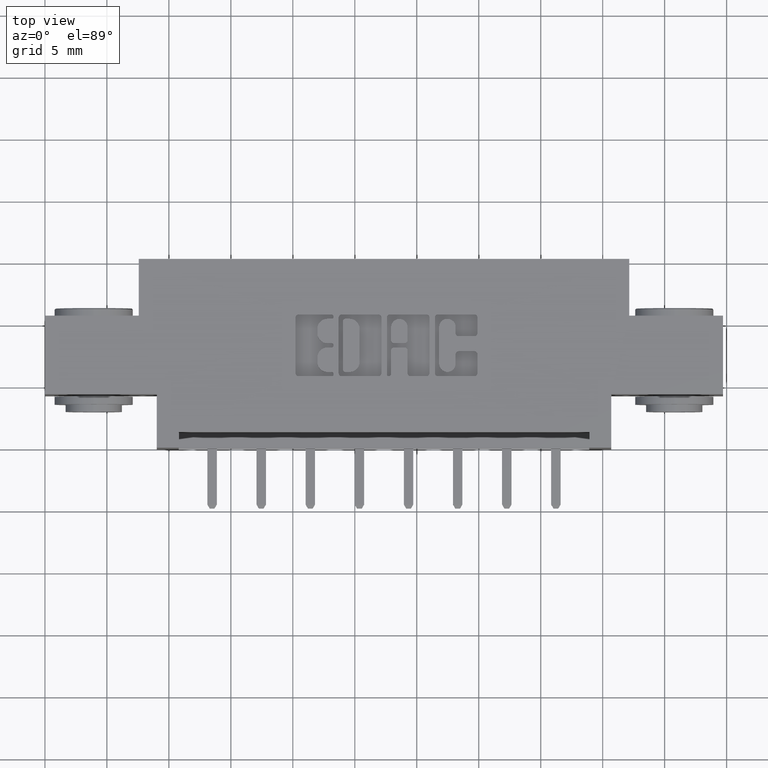
[diagram: clean part render]
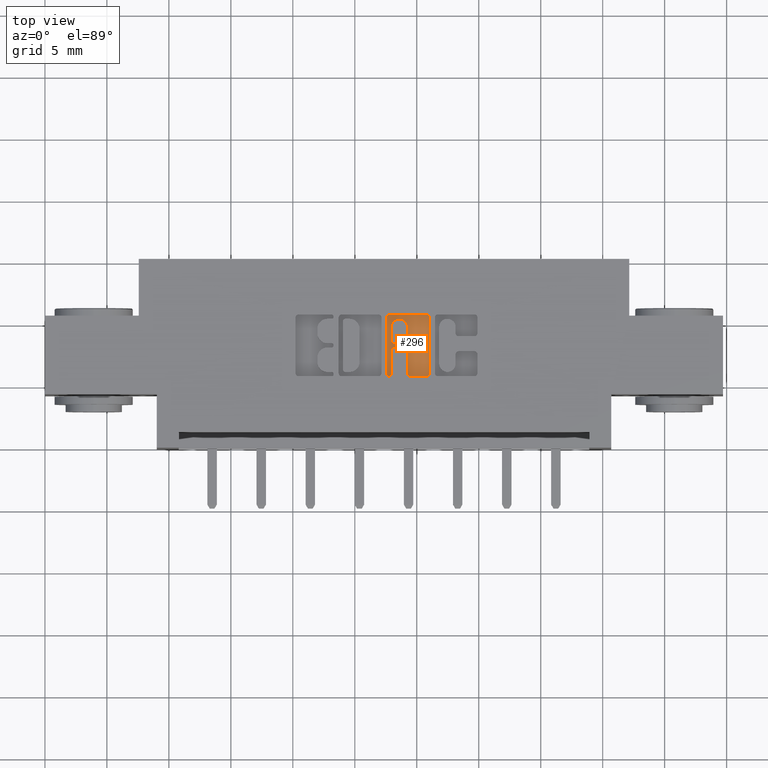
[diagram: same view with one face highlighted and labeled with its STEP entity id]
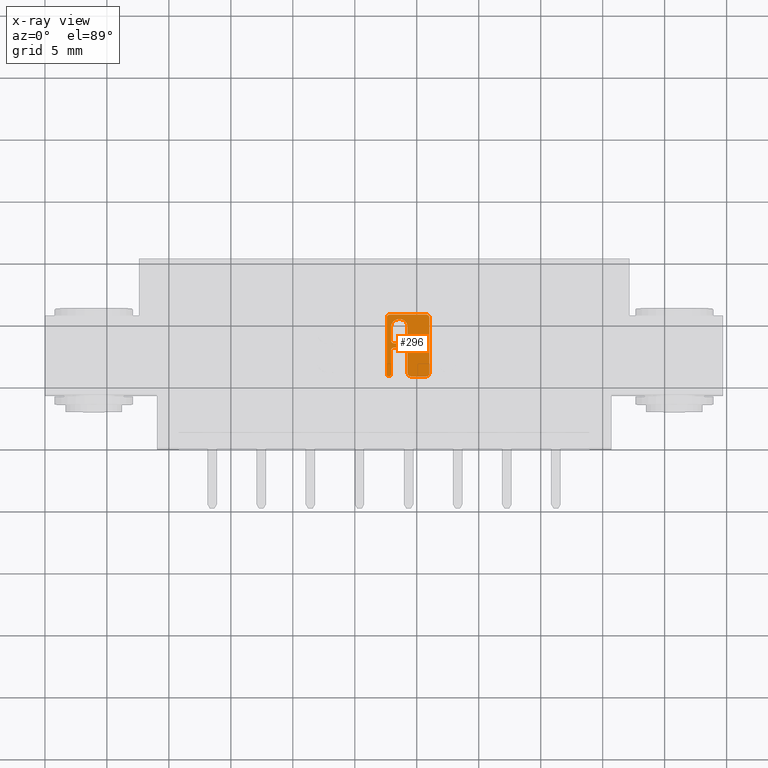
[diagram: x-ray of the same camera — body ghosted, the highlighted face saturated]
A machine part, top view. The second image highlights one B-rep face of the part: STEP entity #296.
The next image is the same camera in x-ray: the body ghosted, the highlighted face saturated — about 0% of this face is hidden behind the body in this view.
In plain terms, the highlighted planar face has unit normal (0, 0, 1).
Its self-contained STEP definition (entity closure, byte-faithful):
#21 = AXIS2_PLACEMENT_3D ( 'NONE', #7656, #7584, #1069 ) ;
#23 = CIRCLE ( 'NONE', #1262, 0.009815670203803340800 ) ;
#69 = DIRECTION ( 'NONE',  ( 0.0000000000000000000, -1.000000000000000000, 0.0000000000000000000 ) ) ;
#133 = DIRECTION ( 'NONE',  ( -0.0000000000000000000, 0.0000000000000000000, 1.000000000000000000 ) ) ;
#213 = CARTESIAN_POINT ( 'NONE',  ( 1.095404381632127500, 0.4231567020380063200, -0.01000000000000000000 ) ) ;
#296 = ADVANCED_FACE ( 'NONE', ( #6488, #6078 ), #9139, .T. ) ;
#367 = VERTEX_POINT ( 'NONE', #8220 ) ;
#497 = ORIENTED_EDGE ( 'NONE', *, *, #7465, .F. ) ;
#512 = DIRECTION ( 'NONE',  ( -0.0000000000000000000, 0.0000000000000000000, 1.000000000000000000 ) ) ;
#578 = CARTESIAN_POINT ( 'NONE',  ( 1.142028815100187800, 0.3083133606535525300, -0.01000000000000000000 ) ) ;
#591 = DIRECTION ( 'NONE',  ( -0.0000000000000000000, 0.0000000000000000000, 1.000000000000000000 ) ) ;
#998 = CARTESIAN_POINT ( 'NONE',  ( 1.211229290037010500, 0.2366589681657806100, -0.01000000000000000000 ) ) ;
#1009 = DIRECTION ( 'NONE',  ( 1.000000000000000000, 0.0000000000000000000, 0.0000000000000000000 ) ) ;
#1060 = VERTEX_POINT ( 'NONE', #8446 ) ;
#1069 = DIRECTION ( 'NONE',  ( 1.000000000000000000, 0.0000000000000000000, 0.0000000000000000000 ) ) ;
#1093 = EDGE_CURVE ( 'NONE', #7718, #7624, #8514, .T. ) ;
#1162 = ORIENTED_EDGE ( 'NONE', *, *, #1588, .F. ) ;
#1174 = CARTESIAN_POINT ( 'NONE',  ( 1.142028815100188300, 0.3181290308573495600, -0.01000000000000000000 ) ) ;
#1207 = EDGE_CURVE ( 'NONE', #1060, #6453, #1817, .T. ) ;
#1262 = AXIS2_PLACEMENT_3D ( 'NONE', #8770, #3523, #1009 ) ;
#1289 = ORIENTED_EDGE ( 'NONE', *, *, #5758, .T. ) ;
#1353 = CIRCLE ( 'NONE', #4039, 0.009815670203796920600 ) ;
#1588 = EDGE_CURVE ( 'NONE', #4360, #2978, #2617, .T. ) ;
#1635 = AXIS2_PLACEMENT_3D ( 'NONE', #8023, #7991, #1947 ) ;
#1817 = LINE ( 'NONE', #8528, #7982 ) ;
#1836 = DIRECTION ( 'NONE',  ( 1.000000000000000000, 0.0000000000000000000, 0.0000000000000000000 ) ) ;
#1947 = DIRECTION ( 'NONE',  ( 1.000000000000000000, 0.0000000000000000000, 0.0000000000000000000 ) ) ;
#2137 = ORIENTED_EDGE ( 'NONE', *, *, #6506, .F. ) ;
#2150 = CIRCLE ( 'NONE', #9567, 0.009815670203796237100 ) ;
#2159 = AXIS2_PLACEMENT_3D ( 'NONE', #6822, #5069, #2513 ) ;
#2315 = DIRECTION ( 'NONE',  ( 1.000000000000000000, 0.0000000000000000000, 0.0000000000000000000 ) ) ;
#2458 = DIRECTION ( 'NONE',  ( 0.0000000000000000000, -1.000000000000000000, 0.0000000000000000000 ) ) ;
#2470 = VECTOR ( 'NONE', #69, 39.37007874015748100 ) ;
#2513 = DIRECTION ( 'NONE',  ( 1.000000000000000000, 0.0000000000000000000, 0.0000000000000000000 ) ) ;
#2581 = CARTESIAN_POINT ( 'NONE',  ( 1.095404381632127500, 0.4133410318342098400, -0.01000000000000000000 ) ) ;
#2617 = CIRCLE ( 'NONE', #21, 0.009815670203803203800 ) ;
#2689 = CARTESIAN_POINT ( 'NONE',  ( 1.151844485303984600, 0.0000000000000000000, -0.01000000000000000000 ) ) ;
#2694 = ORIENTED_EDGE ( 'NONE', *, *, #6123, .F. ) ;
#2838 = DIRECTION ( 'NONE',  ( 0.0000000000000000000, 1.000000000000000000, -0.0000000000000000000 ) ) ;
#2894 = CIRCLE ( 'NONE', #5529, 0.02625691779516779700 ) ;
#2922 = EDGE_CURVE ( 'NONE', #4676, #9595, #6371, .T. ) ;
#2931 = CARTESIAN_POINT ( 'NONE',  ( 1.221044960240806900, 0.0000000000000000000, -0.01000000000000000000 ) ) ;
#2978 = VERTEX_POINT ( 'NONE', #6887 ) ;
#3057 = VECTOR ( 'NONE', #10258, 39.37007874015748100 ) ;
#3334 = LINE ( 'NONE', #11033, #3057 ) ;
#3381 = ORIENTED_EDGE ( 'NONE', *, *, #9860, .T. ) ;
#3412 = EDGE_CURVE ( 'NONE', #5544, #367, #3334, .T. ) ;
#3419 = VECTOR ( 'NONE', #5389, 39.37007874015748100 ) ;
#3451 = CARTESIAN_POINT ( 'NONE',  ( 1.211229290037014100, 0.4231567020380063200, -0.01000000000000000000 ) ) ;
#3523 = DIRECTION ( 'NONE',  ( -0.0000000000000000000, 0.0000000000000000000, 1.000000000000000000 ) ) ;
#3574 = EDGE_CURVE ( 'NONE', #8331, #6739, #11088, .T. ) ;
#3637 = CARTESIAN_POINT ( 'NONE',  ( 1.151844485303982200, 0.0000000000000000000, -0.01000000000000000000 ) ) ;
#3827 = VERTEX_POINT ( 'NONE', #7531 ) ;
#3839 = EDGE_CURVE ( 'NONE', #4676, #5618, #4825, .T. ) ;
#3906 = ORIENTED_EDGE ( 'NONE', *, *, #3574, .T. ) ;
#3924 = ORIENTED_EDGE ( 'NONE', *, *, #3412, .T. ) ;
#3929 = LINE ( 'NONE', #10232, #7389 ) ;
#4039 = AXIS2_PLACEMENT_3D ( 'NONE', #578, #512, #5772 ) ;
#4139 = VERTEX_POINT ( 'NONE', #9231 ) ;
#4164 = ORIENTED_EDGE ( 'NONE', *, *, #8323, .T. ) ;
#4175 = DIRECTION ( 'NONE',  ( -1.000000000000000000, 0.0000000000000000000, 0.0000000000000000000 ) ) ;
#4328 = CARTESIAN_POINT ( 'NONE',  ( 1.221044960240806900, 0.2366589681657806100, -0.01000000000000000000 ) ) ;
#4360 = VERTEX_POINT ( 'NONE', #10528 ) ;
#4386 = DIRECTION ( 'NONE',  ( 0.0000000000000000000, -1.000000000000000000, 0.0000000000000000000 ) ) ;
#4392 = VECTOR ( 'NONE', #6511, 39.37007874015748100 ) ;
#4613 = ORIENTED_EDGE ( 'NONE', *, *, #10071, .F. ) ;
#4663 = LINE ( 'NONE', #2689, #3419 ) ;
#4676 = VERTEX_POINT ( 'NONE', #8368 ) ;
#4692 = VECTOR ( 'NONE', #10130, 39.37007874015748100 ) ;
#4730 = EDGE_CURVE ( 'NONE', #5544, #8432, #8500, .T. ) ;
#4784 = LINE ( 'NONE', #3637, #2470 ) ;
#4825 = CIRCLE ( 'NONE', #1635, 0.009815670203795690700 ) ;
#4859 = ORIENTED_EDGE ( 'NONE', *, *, #3839, .T. ) ;
#4975 = CARTESIAN_POINT ( 'NONE',  ( 1.142028815100185800, 0.3318709691426852700, -0.01000000000000000000 ) ) ;
#5007 = DIRECTION ( 'NONE',  ( 1.000000000000000000, 0.0000000000000000000, 0.0000000000000000000 ) ) ;
#5047 = ORIENTED_EDGE ( 'NONE', *, *, #10842, .F. ) ;
#5069 = DIRECTION ( 'NONE',  ( -0.0000000000000000000, 0.0000000000000000000, 1.000000000000000000 ) ) ;
#5331 = DIRECTION ( 'NONE',  ( -0.0000000000000000000, 0.0000000000000000000, 1.000000000000000000 ) ) ;
#5389 = DIRECTION ( 'NONE',  ( 0.0000000000000000000, 1.000000000000000000, -0.0000000000000000000 ) ) ;
#5467 = EDGE_CURVE ( 'NONE', #10743, #4139, #5880, .T. ) ;
#5529 = AXIS2_PLACEMENT_3D ( 'NONE', #10716, #8932, #8161 ) ;
#5544 = VERTEX_POINT ( 'NONE', #4975 ) ;
#5618 = VERTEX_POINT ( 'NONE', #3451 ) ;
#5758 = EDGE_CURVE ( 'NONE', #3827, #8432, #4784, .T. ) ;
#5772 = DIRECTION ( 'NONE',  ( 1.000000000000000000, 0.0000000000000000000, 0.0000000000000000000 ) ) ;
#5880 = CIRCLE ( 'NONE', #9253, 0.006870969142657995000 ) ;
#5928 = EDGE_CURVE ( 'NONE', #10743, #6739, #6856, .T. ) ;
#5947 = EDGE_LOOP ( 'NONE', ( #4613, #1289, #6115, #3924, #8744, #7733 ) ) ;
#6078 = FACE_OUTER_BOUND ( 'NONE', #7768, .T. ) ;
#6089 = VERTEX_POINT ( 'NONE', #8298 ) ;
#6115 = ORIENTED_EDGE ( 'NONE', *, *, #4730, .F. ) ;
#6123 = EDGE_CURVE ( 'NONE', #7793, #4360, #6715, .T. ) ;
#6316 = CARTESIAN_POINT ( 'NONE',  ( 1.099330649713647000, 0.3416866393464884600, -0.01000000000000000000 ) ) ;
#6371 = LINE ( 'NONE', #2931, #10169 ) ;
#6376 = VERTEX_POINT ( 'NONE', #7630 ) ;
#6453 = VERTEX_POINT ( 'NONE', #11058 ) ;
#6488 = FACE_BOUND ( 'NONE', #5947, .T. ) ;
#6506 = EDGE_CURVE ( 'NONE', #8331, #5618, #6871, .T. ) ;
#6511 = DIRECTION ( 'NONE',  ( -1.000000000000000000, -3.530861605407645300E-014, 0.0000000000000000000 ) ) ;
#6597 = ORIENTED_EDGE ( 'NONE', *, *, #1207, .F. ) ;
#6669 = ORIENTED_EDGE ( 'NONE', *, *, #2922, .F. ) ;
#6715 = LINE ( 'NONE', #7415, #4392 ) ;
#6739 = VERTEX_POINT ( 'NONE', #10968 ) ;
#6773 = CARTESIAN_POINT ( 'NONE',  ( 1.161660155507788100, 0.2366589681657875800, -0.01000000000000000000 ) ) ;
#6822 = CARTESIAN_POINT ( 'NONE',  ( 1.142028815100185800, 0.3416866393464816900, -0.01000000000000000000 ) ) ;
#6856 = LINE ( 'NONE', #9088, #10499 ) ;
#6871 = LINE ( 'NONE', #9532, #8753 ) ;
#6887 = CARTESIAN_POINT ( 'NONE',  ( 1.099330649713647000, 0.3083133606535453100, -0.01000000000000000000 ) ) ;
#6964 = AXIS2_PLACEMENT_3D ( 'NONE', #6773, #7637, #7750 ) ;
#7389 = VECTOR ( 'NONE', #2458, 39.37007874015748100 ) ;
#7415 = CARTESIAN_POINT ( 'NONE',  ( -1.123269580619617200E-014, 0.3181290308573092600, -0.01000000000000000000 ) ) ;
#7465 = EDGE_CURVE ( 'NONE', #2978, #4139, #3929, .T. ) ;
#7531 = CARTESIAN_POINT ( 'NONE',  ( 1.151844485303982200, 0.3826670498449319400, -0.01000000000000000000 ) ) ;
#7584 = DIRECTION ( 'NONE',  ( -0.0000000000000000000, 0.0000000000000000000, 1.000000000000000000 ) ) ;
#7624 = VERTEX_POINT ( 'NONE', #10674 ) ;
#7630 = CARTESIAN_POINT ( 'NONE',  ( 1.151844485303984600, 0.2366589681657875800, -0.01000000000000000000 ) ) ;
#7637 = DIRECTION ( 'NONE',  ( -0.0000000000000000000, 0.0000000000000000000, 1.000000000000000000 ) ) ;
#7656 = CARTESIAN_POINT ( 'NONE',  ( 1.109146319917450300, 0.3083133606535453100, -0.01000000000000000000 ) ) ;
#7693 = CIRCLE ( 'NONE', #6964, 0.009815670203803203800 ) ;
#7714 = ORIENTED_EDGE ( 'NONE', *, *, #5928, .F. ) ;
#7718 = VERTEX_POINT ( 'NONE', #6316 ) ;
#7733 = ORIENTED_EDGE ( 'NONE', *, *, #1093, .T. ) ;
#7750 = DIRECTION ( 'NONE',  ( 1.000000000000000000, 0.0000000000000000000, 0.0000000000000000000 ) ) ;
#7764 = CARTESIAN_POINT ( 'NONE',  ( 1.151844485303982200, 0.3416866393464816900, -0.01000000000000000000 ) ) ;
#7768 = EDGE_LOOP ( 'NONE', ( #2137, #3906, #7714, #10540, #497, #1162, #2694, #5047, #9842, #3381, #6597, #4164, #6669, #4859 ) ) ;
#7793 = VERTEX_POINT ( 'NONE', #1174 ) ;
#7982 = VECTOR ( 'NONE', #4175, 39.37007874015748100 ) ;
#7991 = DIRECTION ( 'NONE',  ( -0.0000000000000000000, 0.0000000000000000000, 1.000000000000000000 ) ) ;
#8023 = CARTESIAN_POINT ( 'NONE',  ( 1.211229290037011600, 0.4133410318342101200, -0.01000000000000000000 ) ) ;
#8161 = DIRECTION ( 'NONE',  ( 1.000000000000000000, 0.0000000000000000000, 0.0000000000000000000 ) ) ;
#8220 = CARTESIAN_POINT ( 'NONE',  ( 1.109146319917450300, 0.3318709691426851000, -0.01000000000000000000 ) ) ;
#8298 = CARTESIAN_POINT ( 'NONE',  ( 1.151844485303984600, 0.3083133606535432000, -0.01000000000000000000 ) ) ;
#8323 = EDGE_CURVE ( 'NONE', #1060, #9595, #2150, .T. ) ;
#8331 = VERTEX_POINT ( 'NONE', #213 ) ;
#8368 = CARTESIAN_POINT ( 'NONE',  ( 1.221044960240806900, 0.4133410318342007300, -0.01000000000000000000 ) ) ;
#8399 = DIRECTION ( 'NONE',  ( 1.000000000000000000, 0.0000000000000000000, 0.0000000000000000000 ) ) ;
#8432 = VERTEX_POINT ( 'NONE', #7764 ) ;
#8446 = CARTESIAN_POINT ( 'NONE',  ( 1.211229290037010500, 0.2268432979619843800, -0.01000000000000000000 ) ) ;
#8485 = CARTESIAN_POINT ( 'NONE',  ( 1.099330649713647000, 0.0000000000000000000, -0.01000000000000000000 ) ) ;
#8500 = CIRCLE ( 'NONE', #2159, 0.009815670203796374200 ) ;
#8514 = LINE ( 'NONE', #8485, #4692 ) ;
#8528 = CARTESIAN_POINT ( 'NONE',  ( 0.0000000000000000000, 0.2268432979619843800, -0.01000000000000000000 ) ) ;
#8744 = ORIENTED_EDGE ( 'NONE', *, *, #10565, .F. ) ;
#8753 = VECTOR ( 'NONE', #5007, 39.37007874015748100 ) ;
#8770 = CARTESIAN_POINT ( 'NONE',  ( 1.109146319917450300, 0.3416866393464884600, -0.01000000000000000000 ) ) ;
#8857 = CARTESIAN_POINT ( 'NONE',  ( 1.085588711428330900, 0.2337142671046476800, -0.01000000000000000000 ) ) ;
#8932 = DIRECTION ( 'NONE',  ( -0.0000000000000000000, 0.0000000000000000000, 1.000000000000000000 ) ) ;
#9088 = CARTESIAN_POINT ( 'NONE',  ( 1.085588711428330900, 0.0000000000000000000, -0.01000000000000000000 ) ) ;
#9139 = PLANE ( 'NONE',  #9799 ) ;
#9231 = CARTESIAN_POINT ( 'NONE',  ( 1.099330649713647000, 0.2337142671046476800, -0.01000000000000000000 ) ) ;
#9253 = AXIS2_PLACEMENT_3D ( 'NONE', #9312, #591, #2315 ) ;
#9312 = CARTESIAN_POINT ( 'NONE',  ( 1.092459680570987000, 0.2337142671046476800, -0.01000000000000000000 ) ) ;
#9385 = AXIS2_PLACEMENT_3D ( 'NONE', #2581, #5331, #1836 ) ;
#9532 = CARTESIAN_POINT ( 'NONE',  ( 0.0000000000000000000, 0.4231567020380063200, -0.01000000000000000000 ) ) ;
#9567 = AXIS2_PLACEMENT_3D ( 'NONE', #998, #133, #10635 ) ;
#9595 = VERTEX_POINT ( 'NONE', #4328 ) ;
#9799 = AXIS2_PLACEMENT_3D ( 'NONE', #10875, #10003, #8399 ) ;
#9842 = ORIENTED_EDGE ( 'NONE', *, *, #10692, .F. ) ;
#9860 = EDGE_CURVE ( 'NONE', #6376, #6453, #7693, .T. ) ;
#10003 = DIRECTION ( 'NONE',  ( -0.0000000000000000000, 0.0000000000000000000, 1.000000000000000000 ) ) ;
#10071 = EDGE_CURVE ( 'NONE', #3827, #7624, #2894, .T. ) ;
#10130 = DIRECTION ( 'NONE',  ( 0.0000000000000000000, 1.000000000000000000, -0.0000000000000000000 ) ) ;
#10169 = VECTOR ( 'NONE', #4386, 39.37007874015748100 ) ;
#10232 = CARTESIAN_POINT ( 'NONE',  ( 1.099330649713647000, 0.0000000000000000000, -0.01000000000000000000 ) ) ;
#10258 = DIRECTION ( 'NONE',  ( -1.000000000000000000, -4.153954829891640800E-015, 0.0000000000000000000 ) ) ;
#10499 = VECTOR ( 'NONE', #2838, 39.37007874015748100 ) ;
#10528 = CARTESIAN_POINT ( 'NONE',  ( 1.109146319917450300, 0.3181290308573483900, -0.01000000000000000000 ) ) ;
#10540 = ORIENTED_EDGE ( 'NONE', *, *, #5467, .T. ) ;
#10565 = EDGE_CURVE ( 'NONE', #7718, #367, #23, .T. ) ;
#10635 = DIRECTION ( 'NONE',  ( 1.000000000000000000, 0.0000000000000000000, 0.0000000000000000000 ) ) ;
#10674 = CARTESIAN_POINT ( 'NONE',  ( 1.099330649713647000, 0.3826670624473476600, -0.01000000000000000000 ) ) ;
#10692 = EDGE_CURVE ( 'NONE', #6376, #6089, #4663, .T. ) ;
#10716 = CARTESIAN_POINT ( 'NONE',  ( 1.125587567508811800, 0.3826670498449319400, -0.01000000000000000000 ) ) ;
#10743 = VERTEX_POINT ( 'NONE', #8857 ) ;
#10842 = EDGE_CURVE ( 'NONE', #6089, #7793, #1353, .T. ) ;
#10875 = CARTESIAN_POINT ( 'NONE',  ( 0.0000000000000000000, 0.0000000000000000000, -0.01000000000000000000 ) ) ;
#10968 = CARTESIAN_POINT ( 'NONE',  ( 1.085588711428330900, 0.4133410318342098400, -0.01000000000000000000 ) ) ;
#11033 = CARTESIAN_POINT ( 'NONE',  ( -1.378577015171057500E-015, 0.3318709691426805500, -0.01000000000000000000 ) ) ;
#11058 = CARTESIAN_POINT ( 'NONE',  ( 1.161660155507785700, 0.2268432979619843800, -0.01000000000000000000 ) ) ;
#11088 = CIRCLE ( 'NONE', #9385, 0.009815670203796511200 ) ;